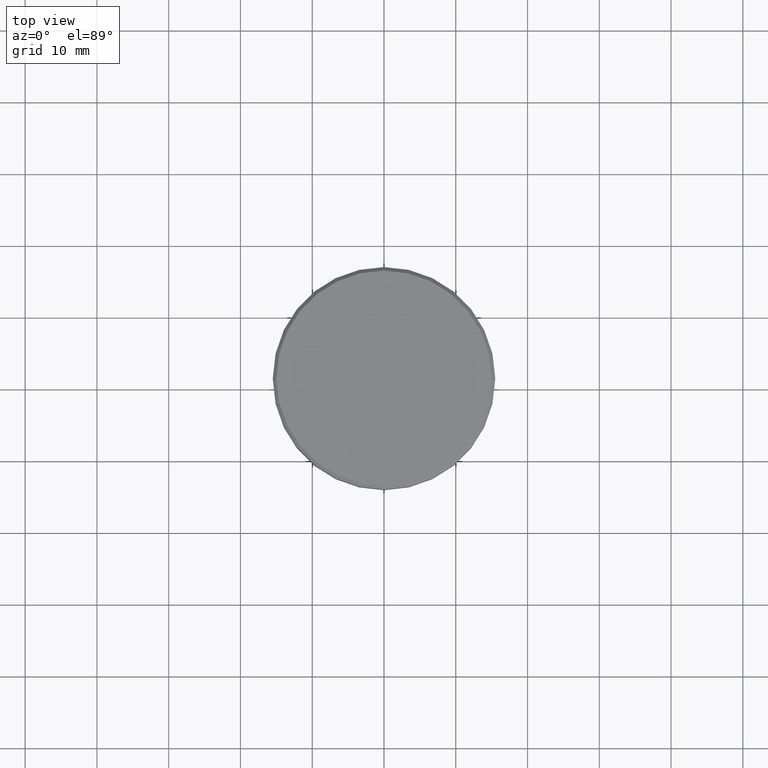
[diagram: clean part render]
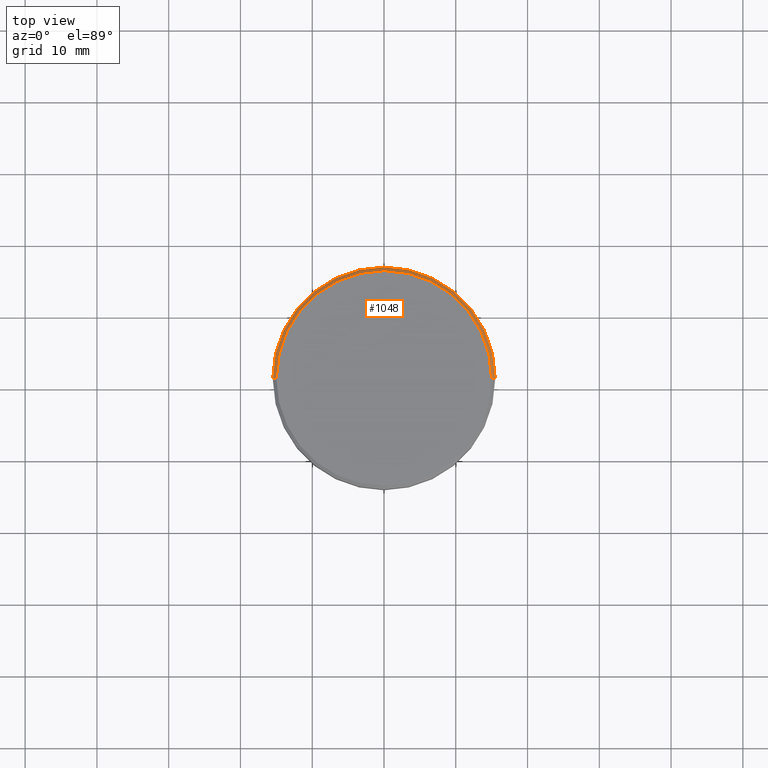
[diagram: same view with one face highlighted and labeled with its STEP entity id]
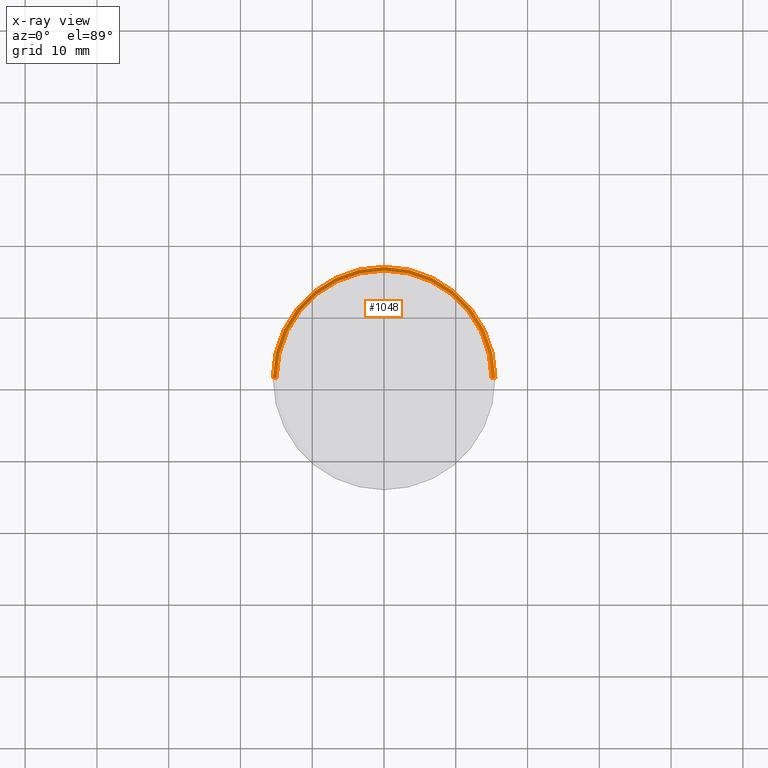
[diagram: x-ray of the same camera — body ghosted, the highlighted face saturated]
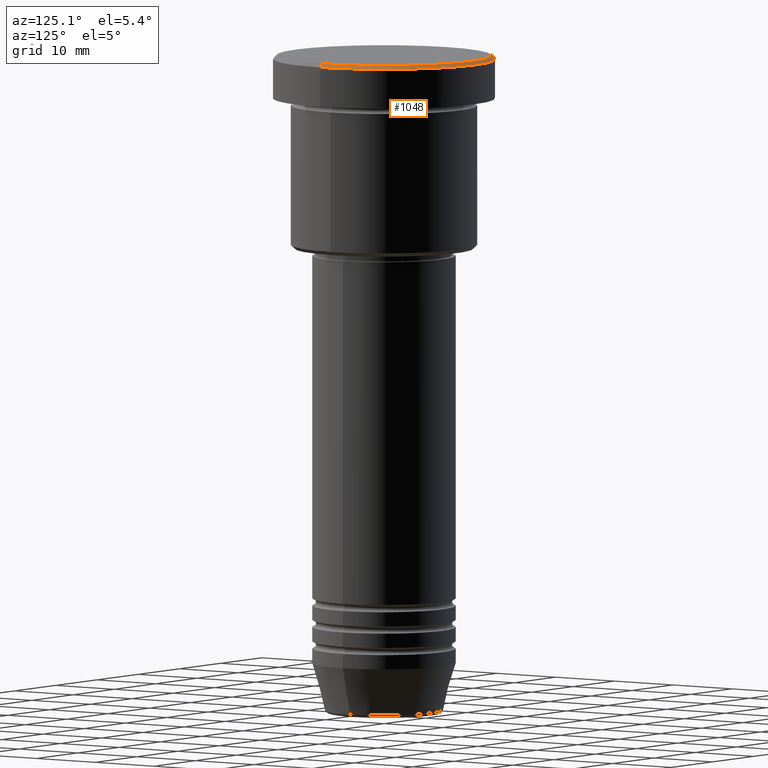
[diagram: same view with one face highlighted and labeled with its STEP entity id]
A machine part, top view. The second image highlights one B-rep face of the part: STEP entity #1048.
The next image is the same camera in x-ray: the body ghosted, the highlighted face saturated — about 0% of this face is hidden behind the body in this view.
A second angle (auxiliary view) of the same face is appended — the face is thin or edge-on in the first view.
In plain terms, the highlighted conical surface has half-angle 45 deg.
Its self-contained STEP definition (entity closure, byte-faithful):
#7 = CARTESIAN_POINT ( 'NONE',  ( -15.00000000000001421, 0.000000000000000000, 0.000000000000000000 ) ) ;
#14 = ORIENTED_EDGE ( 'NONE', *, *, #1068, .F. ) ;
#25 = CARTESIAN_POINT ( 'NONE',  ( 0.000000000000000000, 0.000000000000000000, 0.000000000000000000 ) ) ;
#34 = VERTEX_POINT ( 'NONE', #546 ) ;
#67 = AXIS2_PLACEMENT_3D ( 'NONE', #25, #124, #1134 ) ;
#99 = LINE ( 'NONE', #553, #933 ) ;
#105 = DIRECTION ( 'NONE',  ( 1.000000000000000000, 0.000000000000000000, 0.000000000000000000 ) ) ;
#124 = DIRECTION ( 'NONE',  ( 0.000000000000000000, 0.000000000000000000, -1.000000000000000000 ) ) ;
#201 = CARTESIAN_POINT ( 'NONE',  ( 15.00000000000001421, 1.836970198721031561E-15, 0.000000000000000000 ) ) ;
#287 = AXIS2_PLACEMENT_3D ( 'NONE', #1160, #814, #377 ) ;
#309 = AXIS2_PLACEMENT_3D ( 'NONE', #452, #370, #105 ) ;
#358 = LINE ( 'NONE', #201, #402 ) ;
#370 = DIRECTION ( 'NONE',  ( 0.000000000000000000, 0.000000000000000000, -1.000000000000000000 ) ) ;
#377 = DIRECTION ( 'NONE',  ( 1.000000000000000000, 0.000000000000000000, 0.000000000000000000 ) ) ;
#383 = CONICAL_SURFACE ( 'NONE', #67, 15.00000000000001421, 0.7853981633974361776 ) ;
#402 = VECTOR ( 'NONE', #480, 1000.000000000000000 ) ;
#452 = CARTESIAN_POINT ( 'NONE',  ( 0.000000000000000000, 0.000000000000000000, -0.4999999999999987232 ) ) ;
#459 = CIRCLE ( 'NONE', #287, 15.00000000000001421 ) ;
#462 = ORIENTED_EDGE ( 'NONE', *, *, #941, .F. ) ;
#464 = DIRECTION ( 'NONE',  ( -0.7071067811865389130, 0.000000000000000000, -0.7071067811865561215 ) ) ;
#480 = DIRECTION ( 'NONE',  ( 0.7071067811865389130, 8.659560562354828088E-17, -0.7071067811865561215 ) ) ;
#537 = FACE_OUTER_BOUND ( 'NONE', #955, .T. ) ;
#546 = CARTESIAN_POINT ( 'NONE',  ( 15.00000000000001421, 1.867586368699714559E-15, 0.000000000000000000 ) ) ;
#553 = CARTESIAN_POINT ( 'NONE',  ( -15.00000000000001421, 0.000000000000000000, 0.000000000000000000 ) ) ;
#603 = ORIENTED_EDGE ( 'NONE', *, *, #972, .F. ) ;
#662 = VERTEX_POINT ( 'NONE', #867 ) ;
#814 = DIRECTION ( 'NONE',  ( -0.000000000000000000, -0.000000000000000000, 1.000000000000000000 ) ) ;
#845 = VERTEX_POINT ( 'NONE', #1009 ) ;
#851 = EDGE_CURVE ( 'NONE', #34, #845, #358, .T. ) ;
#867 = CARTESIAN_POINT ( 'NONE',  ( -15.50000000000000000, 1.898202538678397557E-15, -0.4999999999999987232 ) ) ;
#933 = VECTOR ( 'NONE', #464, 1000.000000000000000 ) ;
#941 = EDGE_CURVE ( 'NONE', #662, #845, #984, .T. ) ;
#955 = EDGE_LOOP ( 'NONE', ( #14, #1158, #462, #603 ) ) ;
#972 = EDGE_CURVE ( 'NONE', #982, #662, #99, .T. ) ;
#982 = VERTEX_POINT ( 'NONE', #7 ) ;
#984 = CIRCLE ( 'NONE', #309, 15.50000000000000000 ) ;
#1009 = CARTESIAN_POINT ( 'NONE',  ( 15.50000000000000000, 0.000000000000000000, -0.4999999999999987232 ) ) ;
#1048 = ADVANCED_FACE ( 'NONE', ( #537 ), #383, .T. ) ;
#1068 = EDGE_CURVE ( 'NONE', #34, #982, #459, .T. ) ;
#1134 = DIRECTION ( 'NONE',  ( -1.000000000000000000, 0.000000000000000000, 0.000000000000000000 ) ) ;
#1158 = ORIENTED_EDGE ( 'NONE', *, *, #851, .T. ) ;
#1160 = CARTESIAN_POINT ( 'NONE',  ( 0.000000000000000000, 0.000000000000000000, 0.000000000000000000 ) ) ;